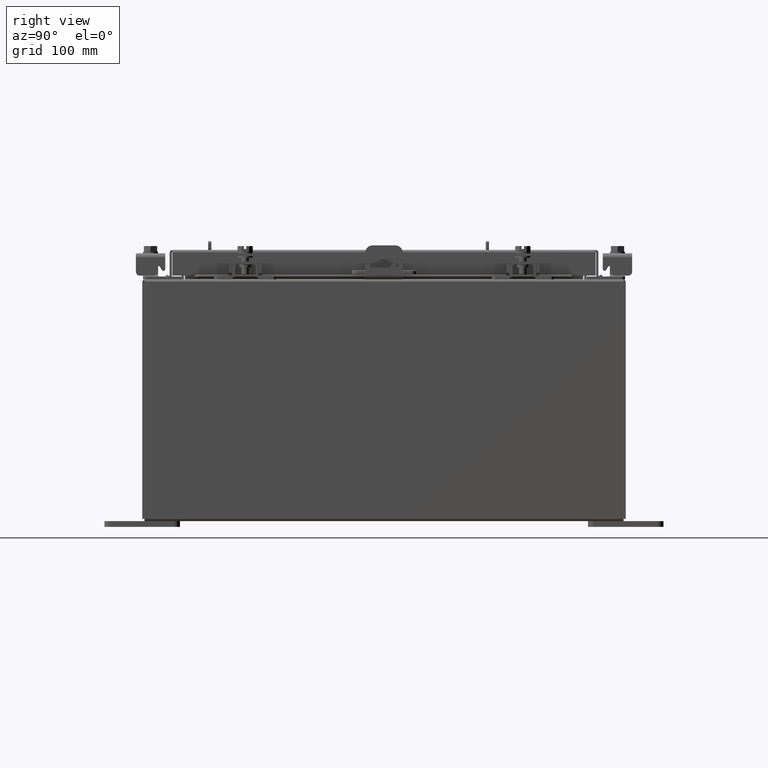
[diagram: clean part render]
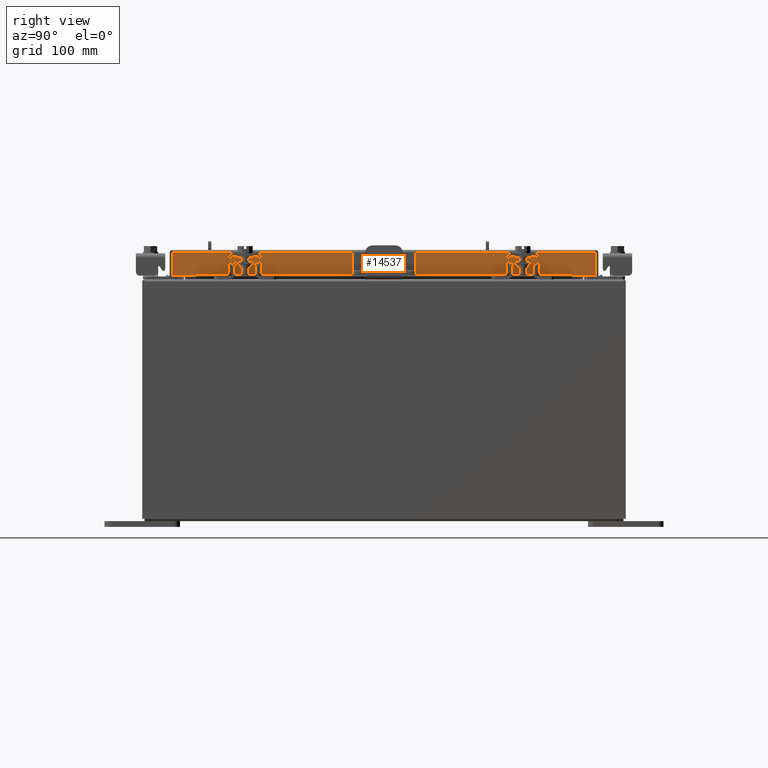
[diagram: same view with one face highlighted and labeled with its STEP entity id]
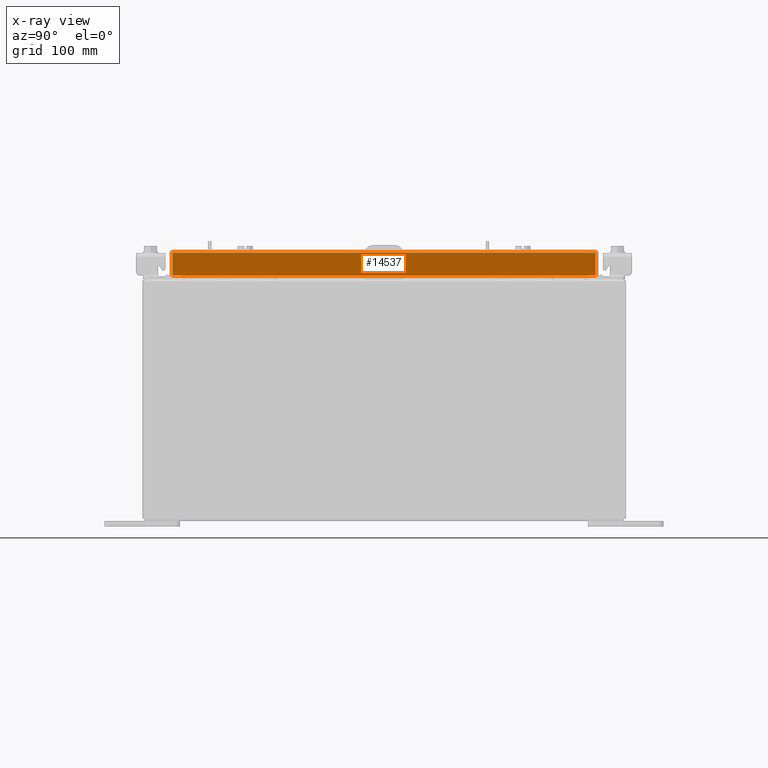
[diagram: x-ray of the same camera — body ghosted, the highlighted face saturated]
A machine part, right view. The second image highlights one B-rep face of the part: STEP entity #14537.
The next image is the same camera in x-ray: the body ghosted, the highlighted face saturated — about 0% of this face is hidden behind the body in this view.
In plain terms, the highlighted planar face has unit normal (1, 0, 0).
Its self-contained STEP definition (entity closure, byte-faithful):
#339 = CARTESIAN_POINT ( 'NONE',  ( 5.077999999999996700, 6.255157864376273300, -0.8500000000000006400 ) ) ;
#1251 = LINE ( 'NONE', #15930, #5287 ) ;
#1960 = VERTEX_POINT ( 'NONE', #339 ) ;
#2249 = VERTEX_POINT ( 'NONE', #15838 ) ;
#2312 = CARTESIAN_POINT ( 'NONE',  ( 5.077999999999998500, -6.754526897220028000E-018, -0.08769999999999951400 ) ) ;
#2562 = VERTEX_POINT ( 'NONE', #2960 ) ;
#2960 = CARTESIAN_POINT ( 'NONE',  ( 5.078000000000001200, -7.005157864376264400, -0.8499999999999996400 ) ) ;
#3351 = VERTEX_POINT ( 'NONE', #21409 ) ;
#4010 = DIRECTION ( 'NONE',  ( -2.818880942772360100E-015, -6.982962677686267500E-015, 1.000000000000000000 ) ) ;
#4063 = DIRECTION ( 'NONE',  ( -2.171061248348209200E-031, -1.000000000000000000, 7.701855070945201600E-017 ) ) ;
#4179 = VERTEX_POINT ( 'NONE', #21781 ) ;
#4261 = CARTESIAN_POINT ( 'NONE',  ( 5.077999999999996700, 6.255157864376273300, -0.8500000000000006400 ) ) ;
#5166 = EDGE_CURVE ( 'NONE', #14964, #3351, #6964, .T. ) ;
#5287 = VECTOR ( 'NONE', #17611, 39.37007874015748100 ) ;
#5752 = CARTESIAN_POINT ( 'NONE',  ( 5.077999999999998500, -7.005157864376269700, -0.07469999999999978000 ) ) ;
#5851 = FACE_OUTER_BOUND ( 'NONE', #16266, .T. ) ;
#5963 = ORIENTED_EDGE ( 'NONE', *, *, #5166, .T. ) ;
#6014 = VECTOR ( 'NONE', #4063, 39.37007874015748100 ) ;
#6964 = LINE ( 'NONE', #9375, #10967 ) ;
#7446 = DIRECTION ( 'NONE',  ( 1.000000000000000000, 0.0000000000000000000, 2.818880942772360100E-015 ) ) ;
#7487 = EDGE_CURVE ( 'NONE', #2562, #2249, #14933, .T. ) ;
#7785 = DIRECTION ( 'NONE',  ( 0.0000000000000000000, -1.000000000000000000, 0.0000000000000000000 ) ) ;
#7832 = LINE ( 'NONE', #4261, #16361 ) ;
#7836 = ORIENTED_EDGE ( 'NONE', *, *, #19387, .T. ) ;
#8316 = ORIENTED_EDGE ( 'NONE', *, *, #10890, .F. ) ;
#9303 = CARTESIAN_POINT ( 'NONE',  ( 5.078000000000001200, -7.094000000000000300, -0.8499999999999996400 ) ) ;
#9375 = CARTESIAN_POINT ( 'NONE',  ( 5.077999999999998500, 7.005157864376269700, 6.349184700164955700E-014 ) ) ;
#9958 = LINE ( 'NONE', #9303, #18464 ) ;
#10348 = VECTOR ( 'NONE', #4010, 39.37007874015748100 ) ;
#10679 = CARTESIAN_POINT ( 'NONE',  ( 5.077999999999998500, 0.0000000000000000000, 1.457509108340962400E-014 ) ) ;
#10890 = EDGE_CURVE ( 'NONE', #4179, #2562, #1251, .T. ) ;
#10967 = VECTOR ( 'NONE', #11095, 39.37007874015748100 ) ;
#11014 = DIRECTION ( 'NONE',  ( 0.0000000000000000000, -1.000000000000000000, 0.0000000000000000000 ) ) ;
#11032 = ORIENTED_EDGE ( 'NONE', *, *, #12029, .F. ) ;
#11068 = LINE ( 'NONE', #2312, #6014 ) ;
#11095 = DIRECTION ( 'NONE',  ( -2.818880942772360100E-015, -6.982962677686267500E-015, 1.000000000000000000 ) ) ;
#12029 = EDGE_CURVE ( 'NONE', #1960, #4179, #7832, .T. ) ;
#14537 = ADVANCED_FACE ( 'NONE', ( #5851 ), #15941, .T. ) ;
#14846 = CARTESIAN_POINT ( 'NONE',  ( 5.078000000000001200, 7.005157864376275100, -0.8499999999999996400 ) ) ;
#14933 = LINE ( 'NONE', #5752, #10348 ) ;
#14964 = VERTEX_POINT ( 'NONE', #14846 ) ;
#15838 = CARTESIAN_POINT ( 'NONE',  ( 5.077999999999998500, -7.005157864376269700, -0.08769999999999897300 ) ) ;
#15930 = CARTESIAN_POINT ( 'NONE',  ( 5.078000000000001200, -7.094000000000000300, -0.8499999999999996400 ) ) ;
#15941 = PLANE ( 'NONE',  #17986 ) ;
#16266 = EDGE_LOOP ( 'NONE', ( #18309, #8316, #11032, #20296, #5963, #7836 ) ) ;
#16361 = VECTOR ( 'NONE', #7785, 39.37007874015748100 ) ;
#17611 = DIRECTION ( 'NONE',  ( 0.0000000000000000000, -1.000000000000000000, 0.0000000000000000000 ) ) ;
#17986 = AXIS2_PLACEMENT_3D ( 'NONE', #10679, #7446, #19295 ) ;
#18309 = ORIENTED_EDGE ( 'NONE', *, *, #7487, .F. ) ;
#18412 = EDGE_CURVE ( 'NONE', #14964, #1960, #9958, .T. ) ;
#18464 = VECTOR ( 'NONE', #11014, 39.37007874015748100 ) ;
#19295 = DIRECTION ( 'NONE',  ( 2.818880942772360100E-015, 0.0000000000000000000, -1.000000000000000000 ) ) ;
#19387 = EDGE_CURVE ( 'NONE', #3351, #2249, #11068, .T. ) ;
#20296 = ORIENTED_EDGE ( 'NONE', *, *, #18412, .F. ) ;
#21409 = CARTESIAN_POINT ( 'NONE',  ( 5.077999999999998500, 7.005157864376269700, -0.08769999999999951400 ) ) ;
#21781 = CARTESIAN_POINT ( 'NONE',  ( 5.077999999999996700, -6.255157864376264400, -0.8500000000000006400 ) ) ;